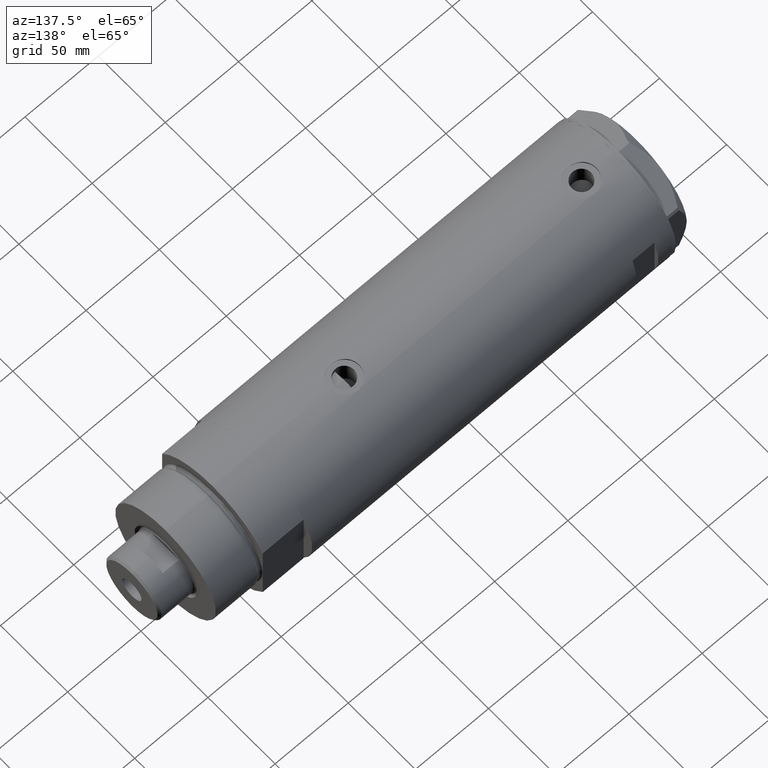
[diagram: clean part render]
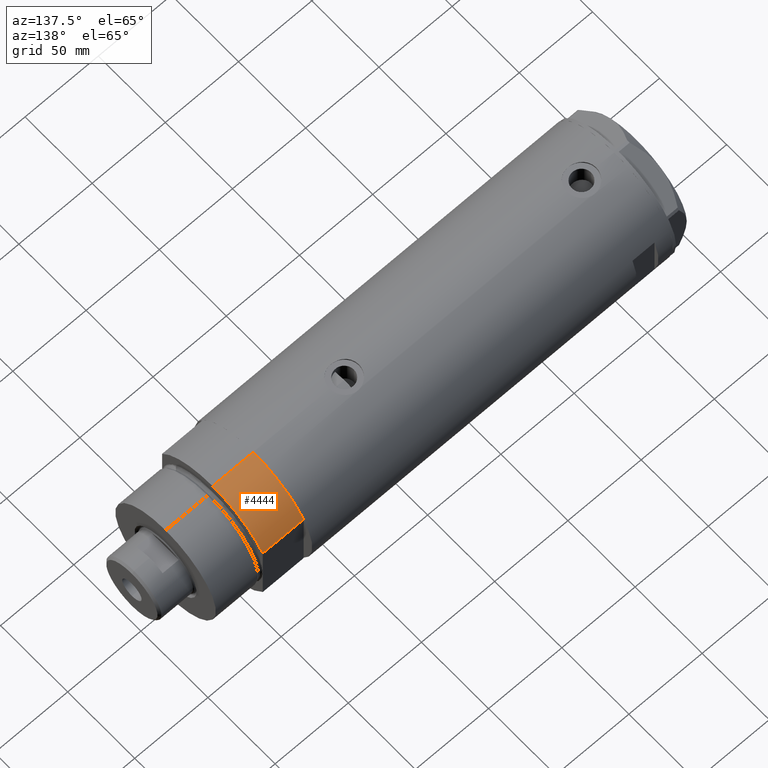
[diagram: same view with one face highlighted and labeled with its STEP entity id]
A machine part, auxiliary view. The second image highlights one B-rep face of the part: STEP entity #4444.
In plain terms, the highlighted cylindrical surface (partial cylindrical patch) has radius 44 mm, axis along (-1, -0, 0).
Its self-contained STEP definition (entity closure, byte-faithful):
#144 = EDGE_LOOP ( 'NONE', ( #1472, #1615, #360, #1453 ) ) ;
#185 = VECTOR ( 'NONE', #361, 1000.000000000000000 ) ;
#360 = ORIENTED_EDGE ( 'NONE', *, *, #1402, .F. ) ;
#361 = DIRECTION ( 'NONE',  ( -0.000000000000000000, -0.000000000000000000, -1.000000000000000000 ) ) ;
#657 = EDGE_CURVE ( 'NONE', #3783, #1851, #1351, .T. ) ;
#816 = CARTESIAN_POINT ( 'NONE',  ( -23.01629857296780557, 37.50000000000000000, 0.000000000000000000 ) ) ;
#825 = DIRECTION ( 'NONE',  ( -0.000000000000000000, -0.000000000000000000, -1.000000000000000000 ) ) ;
#831 = DIRECTION ( 'NONE',  ( 1.000000000000000000, 0.000000000000000000, 0.000000000000000000 ) ) ;
#1259 = CARTESIAN_POINT ( 'NONE',  ( 0.000000000000000000, 0.000000000000000000, 0.000000000000000000 ) ) ;
#1311 = CARTESIAN_POINT ( 'NONE',  ( -44.00000000000000000, 0.000000000000000000, 0.000000000000000000 ) ) ;
#1317 = EDGE_CURVE ( 'NONE', #1851, #2553, #1761, .T. ) ;
#1351 = CIRCLE ( 'NONE', #1933, 44.00000000000000000 ) ;
#1402 = EDGE_CURVE ( 'NONE', #2746, #3783, #2815, .T. ) ;
#1453 = ORIENTED_EDGE ( 'NONE', *, *, #3316, .T. ) ;
#1472 = ORIENTED_EDGE ( 'NONE', *, *, #1317, .F. ) ;
#1505 = CARTESIAN_POINT ( 'NONE',  ( -23.01629857296780557, 37.50000000000000000, 27.89999999999999858 ) ) ;
#1540 = FACE_OUTER_BOUND ( 'NONE', #144, .T. ) ;
#1615 = ORIENTED_EDGE ( 'NONE', *, *, #657, .F. ) ;
#1761 = LINE ( 'NONE', #3851, #185 ) ;
#1851 = VERTEX_POINT ( 'NONE', #2946 ) ;
#1874 = DIRECTION ( 'NONE',  ( -1.000000000000000000, 0.000000000000000000, 0.000000000000000000 ) ) ;
#1933 = AXIS2_PLACEMENT_3D ( 'NONE', #3951, #3977, #831 ) ;
#2471 = DIRECTION ( 'NONE',  ( -0.000000000000000000, -0.000000000000000000, 1.000000000000000000 ) ) ;
#2553 = VERTEX_POINT ( 'NONE', #1311 ) ;
#2608 = DIRECTION ( 'NONE',  ( 0.000000000000000000, 0.000000000000000000, 1.000000000000000000 ) ) ;
#2644 = AXIS2_PLACEMENT_3D ( 'NONE', #3359, #825, #1874 ) ;
#2746 = VERTEX_POINT ( 'NONE', #3939 ) ;
#2815 = LINE ( 'NONE', #816, #4221 ) ;
#2946 = CARTESIAN_POINT ( 'NONE',  ( -44.00000000000000000, 0.000000000000000000, 27.89999999999999858 ) ) ;
#3252 = DIRECTION ( 'NONE',  ( 1.000000000000000000, 0.000000000000000000, 0.000000000000000000 ) ) ;
#3316 = EDGE_CURVE ( 'NONE', #2746, #2553, #3366, .T. ) ;
#3359 = CARTESIAN_POINT ( 'NONE',  ( 0.000000000000000000, 0.000000000000000000, 27.89999999999999858 ) ) ;
#3366 = CIRCLE ( 'NONE', #4249, 44.00000000000000000 ) ;
#3783 = VERTEX_POINT ( 'NONE', #1505 ) ;
#3851 = CARTESIAN_POINT ( 'NONE',  ( -44.00000000000000000, 0.000000000000000000, 27.89999999999999858 ) ) ;
#3939 = CARTESIAN_POINT ( 'NONE',  ( -23.01629857296780557, 37.50000000000000000, 0.000000000000000000 ) ) ;
#3951 = CARTESIAN_POINT ( 'NONE',  ( 0.000000000000000000, 0.000000000000000000, 27.89999999999999858 ) ) ;
#3970 = CYLINDRICAL_SURFACE ( 'NONE', #2644, 44.00000000000000000 ) ;
#3977 = DIRECTION ( 'NONE',  ( 0.000000000000000000, 0.000000000000000000, 1.000000000000000000 ) ) ;
#4221 = VECTOR ( 'NONE', #2471, 1000.000000000000000 ) ;
#4249 = AXIS2_PLACEMENT_3D ( 'NONE', #1259, #2608, #3252 ) ;
#4444 = ADVANCED_FACE ( 'NONE', ( #1540 ), #3970, .T. ) ;